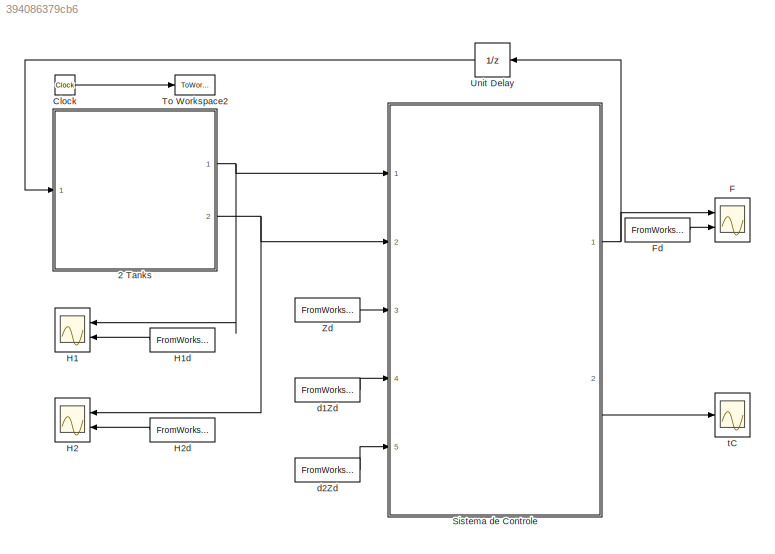
MODEL slx_394086379cb6
KIND model
CONFIG AbsTol = auto
CONFIG EnableMultiTasking = on
CONFIG FixedStep = dt
CONFIG MaxStep = auto
CONFIG MinStep = auto
CONFIG RelTol = 1e-3
CONFIG SampleTimeConstraint = Unconstrained
CONFIG Solver = ode4
CONFIG SolverName = ode4
CONFIG StartTime = 0.0
CONFIG StopTime = tfinal
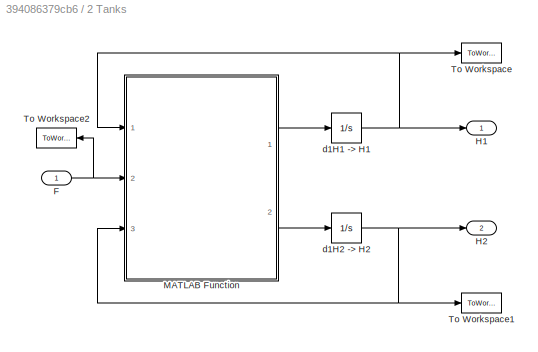
BLOCK [SubSystem] 2 Tanks
  Ports = [1, 2]
  RequestExecContextInheritance = off
BLOCK [Inport] 2 Tanks/F
  IconDisplay = Port number
BLOCK [Outport] 2 Tanks/H1
  IconDisplay = Port number
BLOCK [Outport] 2 Tanks/H2
  IconDisplay = Port number
  Port = 2
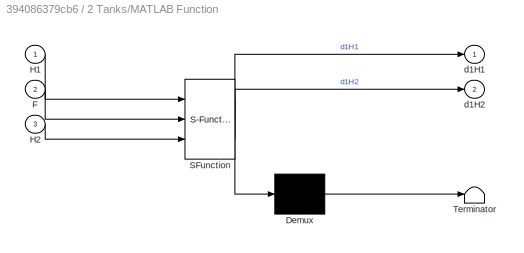
BLOCK [SubSystem] 2 Tanks/MATLAB Function
  ErrorFcn = Stateflow.Translate.translate
  PermitHierarchicalResolution = ExplicitOnly
  Ports = [3, 2]
  RequestExecContextInheritance = off
  SFBlockType = MATLAB Function
  TreatAsAtomicUnit = on
BLOCK [Demux] 2 Tanks/MATLAB Function/ Demux 
  Outputs = 1
  Ports = [1, 1]
BLOCK [S-Function] 2 Tanks/MATLAB Function/ SFunction 
  EnableBusSupport = on
  FunctionName = sf_sfun
  Parameters = a1,a2,a3,a4
  PortCounts = [3 3]
  Ports = [3, 3]
  SFcnIsStateOwnerBlock = off
  SFunctionDeploymentMode = off
  Tag = Stateflow S-Function TwoTanks_FO_2018a 3
BLOCK [Terminator] 2 Tanks/MATLAB Function/ Terminator 
BLOCK [Inport] 2 Tanks/MATLAB Function/F
  IconDisplay = Port number
  Port = 2
BLOCK [Inport] 2 Tanks/MATLAB Function/H1
  IconDisplay = Port number
BLOCK [Inport] 2 Tanks/MATLAB Function/H2
  IconDisplay = Port number
  Port = 3
BLOCK [Outport] 2 Tanks/MATLAB Function/d1H1
  IconDisplay = Port number
BLOCK [Outport] 2 Tanks/MATLAB Function/d1H2
  IconDisplay = Port number
  Port = 2
BLOCK [ToWorkspace] 2 Tanks/To Workspace
  FixptAsFi = on
  MaxDataPoints = inf
  Ports = [1]
  SampleTime = -1
  VariableName = h1f
BLOCK [ToWorkspace] 2 Tanks/To Workspace1
  FixptAsFi = on
  MaxDataPoints = inf
  Ports = [1]
  SampleTime = -1
  VariableName = h2f
BLOCK [ToWorkspace] 2 Tanks/To Workspace2
  FixptAsFi = on
  MaxDataPoints = inf
  Ports = [1]
  SampleTime = -1
  VariableName = ff
BLOCK [Integrator] 2 Tanks/d1H1 -> H1
  InitialCondition = h10
  LimitOutput = on
  LowerSaturationLimit = 0
  Ports = [1, 1]
  UpperSaturationLimit = H1max
BLOCK [Integrator] 2 Tanks/d1H2 -> H2
  InitialCondition = h20
  LimitOutput = on
  LowerSaturationLimit = 0
  Ports = [1, 1]
  UpperSaturationLimit = H2max
BLOCK [Clock] Clock
BLOCK [Scope] F
  Floating = off
  NumInputPorts = 2
  Ports = [2]
  ScopeSpecificationString = Simulink.scopes.TimeScopeBlockCfg('CurrentConfiguration', extmgr.ConfigurationSet(extmgr.Configuration('Core','General UI',true),extmgr.Configuration('Core','Source UI',true),extmgr.Configuration('Sources','WiredSimulink',true,'DataLoggingVariableName','ScopeData2','DataLoggingSaveFormat','StructureWithTime','DataLoggingDecimation','1','DataLoggingDecimateData',true),extmgr.Configuration('Visuals'...<+1692ch>
BLOCK [FromWorkspace] Fd
  OutputAfterFinalValue = Holding final value
  SampleTime = 0
  VariableName = [t' Fd']
  ZeroCross = on
BLOCK [Scope] H1
  Floating = off
  NumInputPorts = 2
  Ports = [2]
  ScopeSpecificationString = Simulink.scopes.TimeScopeBlockCfg('CurrentConfiguration', extmgr.ConfigurationSet(extmgr.Configuration('Core','General UI',true),extmgr.Configuration('Core','Source UI',true),extmgr.Configuration('Sources','WiredSimulink',true,'DataLoggingVariableName','ScopeData1','DataLoggingSaveFormat','StructureWithTime','DataLoggingDecimation','1','DataLoggingDecimateData',true),extmgr.Configuration('Visuals'...<+1677ch>
BLOCK [FromWorkspace] H1d
  OutputAfterFinalValue = Holding final value
  SampleTime = 0
  VariableName = [t' H1d']
  ZeroCross = on
BLOCK [Scope] H2
  Floating = off
  NumInputPorts = 2
  Ports = [2]
  ScopeSpecificationString = Simulink.scopes.TimeScopeBlockCfg('CurrentConfiguration', extmgr.ConfigurationSet(extmgr.Configuration('Core','General UI',true),extmgr.Configuration('Core','Source UI',true),extmgr.Configuration('Sources','WiredSimulink',true,'DataLoggingVariableName','ScopeData3','DataLoggingSaveFormat','StructureWithTime','DataLoggingDecimation','1','DataLoggingDecimateData',true),extmgr.Configuration('Visuals'...<+1696ch>
BLOCK [FromWorkspace] H2d
  OutputAfterFinalValue = Holding final value
  SampleTime = 0
  VariableName = [t' H2d']
  ZeroCross = on
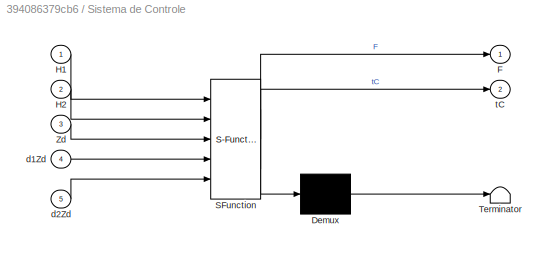
BLOCK [SubSystem] Sistema de Controle
  ErrorFcn = Stateflow.Translate.translate
  PermitHierarchicalResolution = ExplicitOnly
  Ports = [5, 2]
  RequestExecContextInheritance = off
  SFBlockType = MATLAB Function
  TreatAsAtomicUnit = on
BLOCK [Demux] Sistema de Controle/ Demux 
  Outputs = 1
  Ports = [1, 1]
BLOCK [S-Function] Sistema de Controle/ SFunction 
  EnableBusSupport = on
  FunctionName = sf_sfun
  Parameters = K0,K1,a1,a2,a3,a4
  PortCounts = [5 3]
  Ports = [5, 3]
  SFcnIsStateOwnerBlock = off
  SFunctionDeploymentMode = off
  Tag = Stateflow S-Function TwoTanks_FO_2018a 2
BLOCK [Terminator] Sistema de Controle/ Terminator 
BLOCK [Outport] Sistema de Controle/F
  IconDisplay = Port number
BLOCK [Inport] Sistema de Controle/H1
  IconDisplay = Port number
BLOCK [Inport] Sistema de Controle/H2
  IconDisplay = Port number
  Port = 2
BLOCK [Inport] Sistema de Controle/Zd
  IconDisplay = Port number
  Port = 3
BLOCK [Inport] Sistema de Controle/d1Zd
  IconDisplay = Port number
  Port = 4
BLOCK [Inport] Sistema de Controle/d2Zd
  IconDisplay = Port number
  Port = 5
BLOCK [Outport] Sistema de Controle/tC
  IconDisplay = Port number
  Port = 2
BLOCK [ToWorkspace] To Workspace2
  FixptAsFi = on
  MaxDataPoints = inf
  Ports = [1]
  SampleTime = -1
  VariableName = tf
BLOCK [UnitDelay] Unit Delay
  HasFrameUpgradeWarning = on
  SampleTime = -1
BLOCK [FromWorkspace] Zd
  OutputAfterFinalValue = Holding final value
  SampleTime = 0
  VariableName = [t' Zd']
  ZeroCross = on
BLOCK [FromWorkspace] d1Zd
  OutputAfterFinalValue = Holding final value
  SampleTime = 0
  VariableName = [t' d1Zd']
  ZeroCross = on
BLOCK [FromWorkspace] d2Zd
  OutputAfterFinalValue = Holding final value
  SampleTime = 0
  VariableName = [t' d2Zd']
  ZeroCross = on
BLOCK [Scope] tC
  Floating = off
  NumInputPorts = 1
  Ports = [1]
  ScopeSpecificationString = Simulink.scopes.TimeScopeBlockCfg('CurrentConfiguration', extmgr.ConfigurationSet(extmgr.Configuration('Core','General UI',true),extmgr.Configuration('Core','Source UI',true),extmgr.Configuration('Sources','WiredSimulink',true,'DataLoggingVariableName','ScopeData3','DataLoggingSaveFormat','StructureWithTime','DataLoggingDecimation','1','DataLoggingDecimateData',true),extmgr.Configuration('Visuals'...<+1684ch>
NET 2 Tanks/F:1 -> 2 Tanks/MATLAB Function:2, 2 Tanks/To Workspace2:1
LINE 2 Tanks/MATLAB Function:1 -> 2 Tanks/d1H1 -> H1:1
LINE 2 Tanks/MATLAB Function:2 -> 2 Tanks/d1H2 -> H2:1
NET 2 Tanks/d1H1 -> H1:1 -> 2 Tanks/H1:1, 2 Tanks/MATLAB Function:1, 2 Tanks/To Workspace:1
NET 2 Tanks/d1H2 -> H2:1 -> 2 Tanks/H2:1, 2 Tanks/MATLAB Function:3, 2 Tanks/To Workspace1:1
NET 2 Tanks:1 -> H1:1, Sistema de Controle:1
NET 2 Tanks:2 -> H2:1, Sistema de Controle:2
LINE Clock:1 -> To Workspace2:1
LINE Fd:1 -> F:2
LINE H1d:1 -> H1:2
LINE H2d:1 -> H2:2
NET Sistema de Controle:1 -> F:1, Unit Delay:1
LINE Sistema de Controle:2 -> tC:1
LINE Unit Delay:1 -> 2 Tanks:1
LINE Zd:1 -> Sistema de Controle:3
LINE d1Zd:1 -> Sistema de Controle:4
LINE d2Zd:1 -> Sistema de Controle:5
note: NET lines group one-source signal fan-out (src -> all destinations, sorted); 1:1 wires keep LINE
CHART Sistema de Controle states=1 transitions=1
  STATE_LABEL 'eML_blk_kernel()'
  STATE_LABEL 'SCRIPT:\nfunction [F, tC] = Controle_Flatness(H1, H2, K1, K0, Zd, d1Zd, d2Zd, a1, a2, a3, a4)\n \n  % Gerando Z e d1Z\n    Z = H2;\n    d1Z = a3*(sqrt(H1)/(H2^2)) - a4/(H2^1.5);\n    \n  % Termo de Correção em Malha Fechada\n    tC = d2Zd - K1*(d1Z - d1Zd) - K0*(Z - Zd); \n    \n  % Gerando a expressão final para os controladores\n    F = ((2*Z^(5/2)*a4 + 2*Z^4*d1Z)/(a1*a3^2))*tC + (a4^2*d1Z + 4*H2^3*d1Z^3 +...<+198ch>'
CHART 2 Tanks/MATLAB Function states=1 transitions=1
  STATE_LABEL 'eML_blk_kernel()'
  STATE_LABEL 'SCRIPT:\nfunction [d1H1, d1H2] = TwoTanks(H1, F, H2, a1, a2, a3, a4)\n  \n  % Sistema Dinâmico\n    d1H1 = a1*F - a2*sqrt(H1);\n    \n    d1H2 = a3*(sqrt(H1)/(H2^2)) - a4*(1/(H2^1.5));\n'
